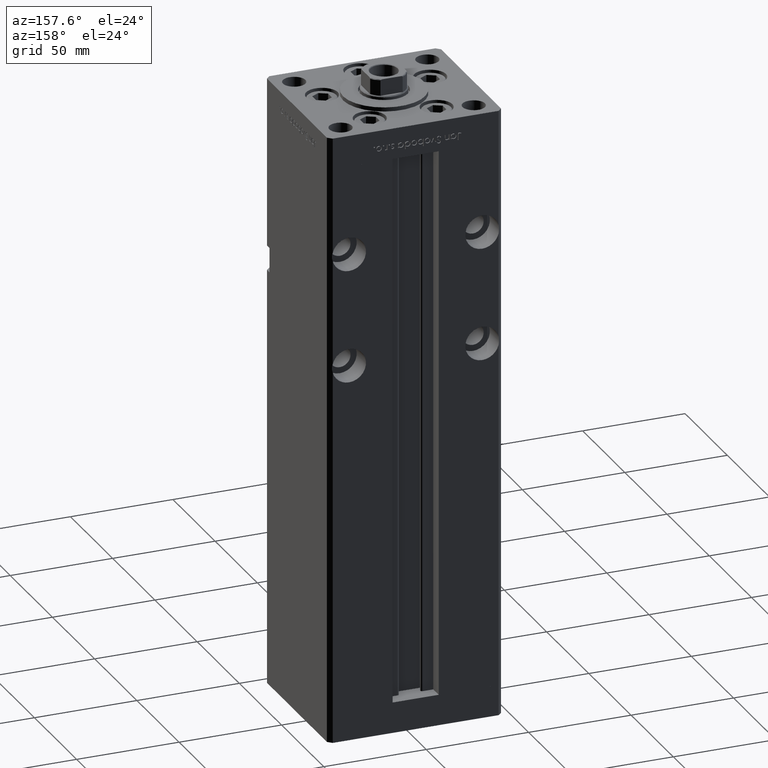
[diagram: clean part render]
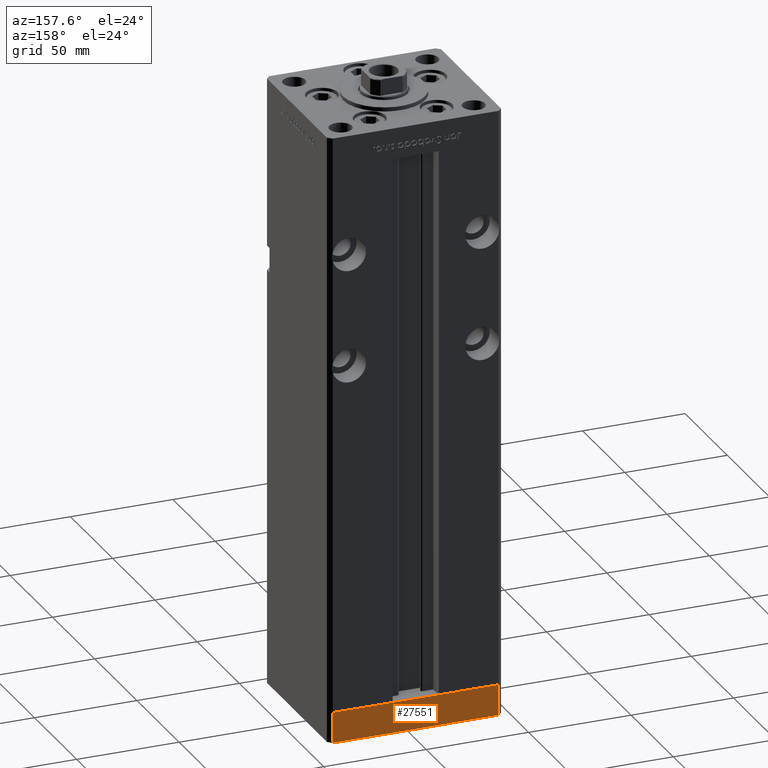
[diagram: same view with one face highlighted and labeled with its STEP entity id]
A machine part, auxiliary view. The second image highlights one B-rep face of the part: STEP entity #27551.
In plain terms, the highlighted planar face has unit normal (-0, 1, 0).
Its self-contained STEP definition (entity closure, byte-faithful):
#76 = DIRECTION ( 'NONE',  ( 0.000000000000000000, 0.000000000000000000, 1.000000000000000000 ) ) ;
#223 = LINE ( 'NONE', #50703, #14227 ) ;
#1889 = CARTESIAN_POINT ( 'NONE',  ( 40.49999999999991473, 37.50000000000000711, -15.00000000000000000 ) ) ;
#11900 = CARTESIAN_POINT ( 'NONE',  ( -40.50000000000000711, 37.49999999999997868, -15.00000000000000000 ) ) ;
#12428 = LINE ( 'NONE', #11900, #32878 ) ;
#12556 = EDGE_CURVE ( 'NONE', #38781, #42767, #223, .T. ) ;
#13076 = DIRECTION ( 'NONE',  ( 0.000000000000000000, 0.000000000000000000, 1.000000000000000000 ) ) ;
#13366 = CARTESIAN_POINT ( 'NONE',  ( 40.49999999999991473, 37.50000000000000711, 0.000000000000000000 ) ) ;
#14227 = VECTOR ( 'NONE', #18127, 1000.000000000000000 ) ;
#14779 = PLANE ( 'NONE',  #25794 ) ;
#16816 = VERTEX_POINT ( 'NONE', #22912 ) ;
#16874 = EDGE_LOOP ( 'NONE', ( #23175, #38238, #21565, #34397 ) ) ;
#18127 = DIRECTION ( 'NONE',  ( -1.000000000000000000, -3.426614273534436165E-16, 0.000000000000000000 ) ) ;
#18273 = DIRECTION ( 'NONE',  ( -1.000000000000000000, -3.426614273534436165E-16, 0.000000000000000000 ) ) ;
#21565 = ORIENTED_EDGE ( 'NONE', *, *, #34983, .T. ) ;
#22912 = CARTESIAN_POINT ( 'NONE',  ( 40.49999999999991473, 37.50000000000000711, -15.00000000000000000 ) ) ;
#23175 = ORIENTED_EDGE ( 'NONE', *, *, #12556, .F. ) ;
#25794 = AXIS2_PLACEMENT_3D ( 'NONE', #47869, #51102, #35749 ) ;
#27551 = ADVANCED_FACE ( 'NONE', ( #31444 ), #14779, .T. ) ;
#31444 = FACE_OUTER_BOUND ( 'NONE', #16874, .T. ) ;
#32751 = EDGE_CURVE ( 'NONE', #16816, #38781, #49160, .T. ) ;
#32878 = VECTOR ( 'NONE', #76, 1000.000000000000000 ) ;
#33512 = CARTESIAN_POINT ( 'NONE',  ( 40.49999999999991473, 37.50000000000000711, -15.00000000000000000 ) ) ;
#34142 = LINE ( 'NONE', #1889, #52572 ) ;
#34397 = ORIENTED_EDGE ( 'NONE', *, *, #37397, .T. ) ;
#34983 = EDGE_CURVE ( 'NONE', #16816, #47739, #34142, .T. ) ;
#35749 = DIRECTION ( 'NONE',  ( -1.000000000000000000, -3.426614273534436165E-16, 0.000000000000000000 ) ) ;
#37025 = VECTOR ( 'NONE', #13076, 1000.000000000000000 ) ;
#37397 = EDGE_CURVE ( 'NONE', #47739, #42767, #12428, .T. ) ;
#38238 = ORIENTED_EDGE ( 'NONE', *, *, #32751, .F. ) ;
#38781 = VERTEX_POINT ( 'NONE', #13366 ) ;
#42767 = VERTEX_POINT ( 'NONE', #47165 ) ;
#46490 = CARTESIAN_POINT ( 'NONE',  ( -40.50000000000000711, 37.49999999999997868, -15.00000000000000000 ) ) ;
#47165 = CARTESIAN_POINT ( 'NONE',  ( -40.50000000000000711, 37.49999999999997868, 0.000000000000000000 ) ) ;
#47739 = VERTEX_POINT ( 'NONE', #46490 ) ;
#47869 = CARTESIAN_POINT ( 'NONE',  ( 40.49999999999991473, 37.50000000000000711, -15.00000000000000000 ) ) ;
#49160 = LINE ( 'NONE', #33512, #37025 ) ;
#50703 = CARTESIAN_POINT ( 'NONE',  ( 40.49999999999991473, 37.50000000000000711, 0.000000000000000000 ) ) ;
#51102 = DIRECTION ( 'NONE',  ( -3.426614273534436165E-16, 1.000000000000000000, 0.000000000000000000 ) ) ;
#52572 = VECTOR ( 'NONE', #18273, 1000.000000000000000 ) ;